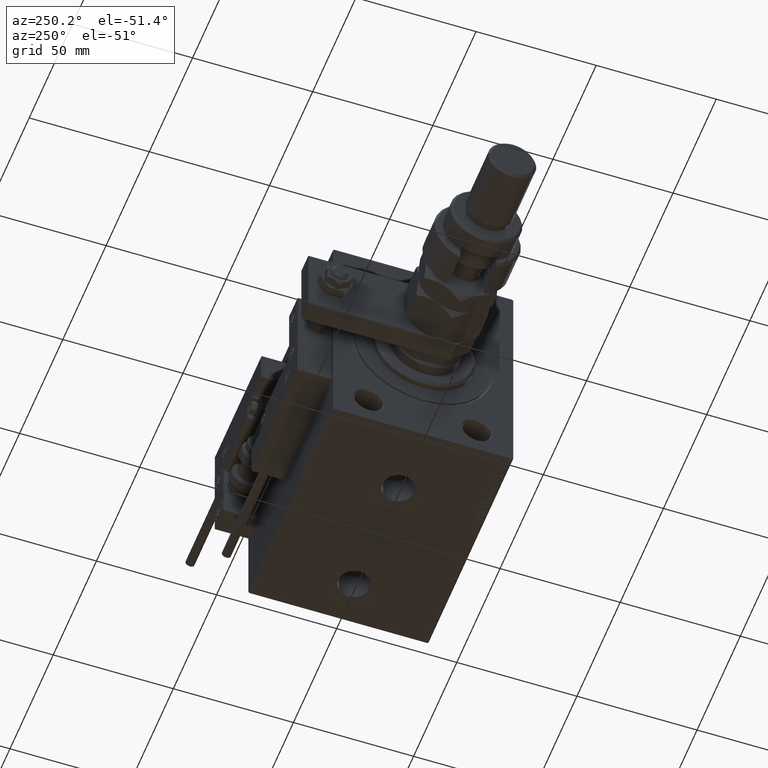
[diagram: clean part render]
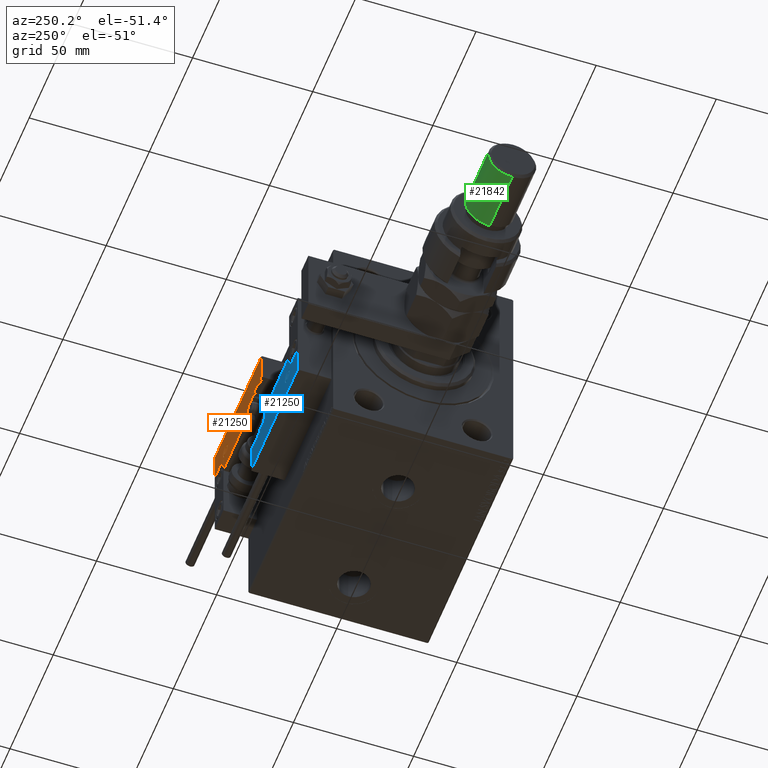
[diagram: same view with three faces highlighted in distinct colors, each labeled with its STEP entity id]
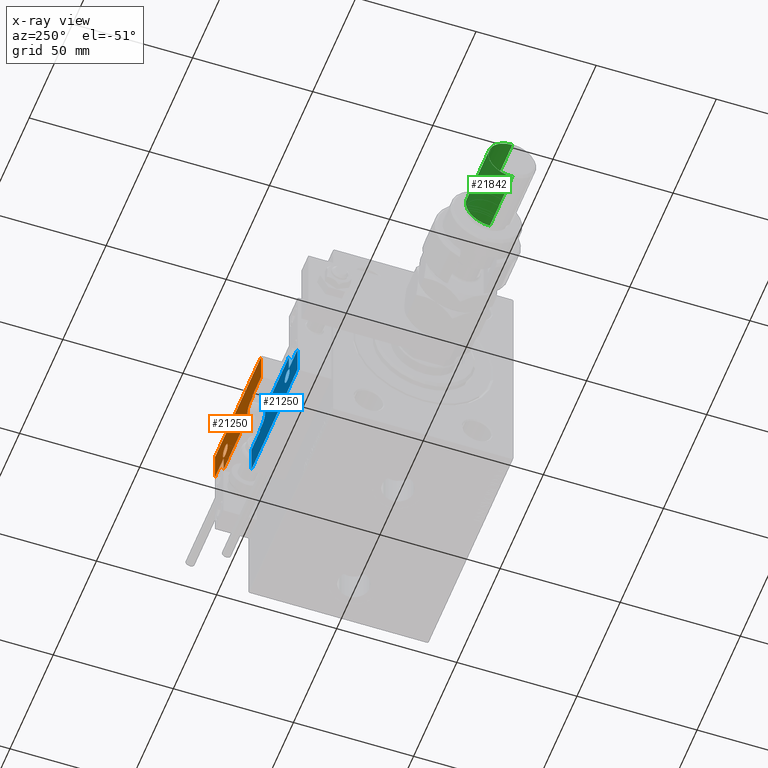
[diagram: x-ray of the same camera — body ghosted, the three highlighted faces saturated]
A machine part, auxiliary view with three faces highlighted in distinct colors.
The next image is the same camera in x-ray (body ghosted, the three faces saturated) — at least one of them is partly hidden behind the body in this view.
Their STEP definitions:

[orange] entity #21250 — the highlighted planar face has unit normal (-0, 1, -0).
#410 = DIRECTION ( 'NONE',  ( 1.000000000000000000, -1.734723475976815230E-16, 0.000000000000000000 ) ) ;
#650 = DIRECTION ( 'NONE',  ( -8.006416042969869188E-16, -1.000000000000000000, 0.000000000000000000 ) ) ;
#1606 = AXIS2_PLACEMENT_3D ( 'NONE', #45020, #9672, #27329 ) ;
#2082 = VERTEX_POINT ( 'NONE', #18731 ) ;
#2425 = CARTESIAN_POINT ( 'NONE',  ( 10.69999999999999929, 3.000000000000003109, 14.00000000000000000 ) ) ;
#4798 = CARTESIAN_POINT ( 'NONE',  ( -26.69999999999993534, 19.70000000000002061, 14.00000000000000000 ) ) ;
#4855 = LINE ( 'NONE', #9650, #11124 ) ;
#5715 = PLANE ( 'NONE',  #1606 ) ;
#5845 = ORIENTED_EDGE ( 'NONE', *, *, #21482, .T. ) ;
#6931 = CARTESIAN_POINT ( 'NONE',  ( 11.00000000000000000, 0.3000000000000032085, 14.00000000000000000 ) ) ;
#7833 = EDGE_CURVE ( 'NONE', #55011, #50033, #26264, .T. ) ;
#8568 = DIRECTION ( 'NONE',  ( 1.000000000000000000, 0.000000000000000000, 0.000000000000000000 ) ) ;
#8580 = CARTESIAN_POINT ( 'NONE',  ( 10.69999999999999929, 3.000000000000003109, 14.00000000000000000 ) ) ;
#8702 = ORIENTED_EDGE ( 'NONE', *, *, #24537, .T. ) ;
#9247 = EDGE_LOOP ( 'NONE', ( #27920, #55128, #53411, #35610, #45185, #5845, #8702, #24912, #42654, #35401, #50799 ) ) ;
#9250 = AXIS2_PLACEMENT_3D ( 'NONE', #46107, #34016, #46382 ) ;
#9347 = DIRECTION ( 'NONE',  ( 1.000000000000000000, -1.734723475976796001E-16, 0.000000000000000000 ) ) ;
#9650 = CARTESIAN_POINT ( 'NONE',  ( -26.69999999999994600, 7.000000000000005329, 14.00000000000000000 ) ) ;
#9672 = DIRECTION ( 'NONE',  ( -0.000000000000000000, 0.000000000000000000, 1.000000000000000000 ) ) ;
#9895 = CARTESIAN_POINT ( 'NONE',  ( -26.99999999999993605, 19.70000000000002061, 14.00000000000000000 ) ) ;
#10040 = VECTOR ( 'NONE', #410, 1000.000000000000000 ) ;
#10226 = FACE_OUTER_BOUND ( 'NONE', #9247, .T. ) ;
#11124 = VECTOR ( 'NONE', #650, 1000.000000000000000 ) ;
#11618 = CARTESIAN_POINT ( 'NONE',  ( 16.69999999999999929, 7.000000000000009770, 14.00000000000000000 ) ) ;
#12307 = CARTESIAN_POINT ( 'NONE',  ( 26.70000000000006324, 7.300000000000007816, 14.00000000000000000 ) ) ;
#12449 = DIRECTION ( 'NONE',  ( 0.000000000000000000, -0.000000000000000000, -1.000000000000000000 ) ) ;
#12494 = CARTESIAN_POINT ( 'NONE',  ( 26.70000000000006324, 20.00000000000001776, 14.00000000000000000 ) ) ;
#12560 = EDGE_CURVE ( 'NONE', #2082, #47040, #40350, .T. ) ;
#12721 = CARTESIAN_POINT ( 'NONE',  ( 13.99999999999999822, 3.000000000000002665, 14.00000000000000000 ) ) ;
#12787 = CARTESIAN_POINT ( 'NONE',  ( -14.79999999999994920, 9.800000000000004263, 14.00000000000000000 ) ) ;
#13307 = EDGE_CURVE ( 'NONE', #50033, #55011, #24629, .T. ) ;
#13336 = VECTOR ( 'NONE', #34869, 1000.000000000000000 ) ;
#14614 = CARTESIAN_POINT ( 'NONE',  ( -17.59999999999994813, 9.800000000000004263, 14.00000000000000000 ) ) ;
#16713 = VECTOR ( 'NONE', #46992, 1000.000000000000000 ) ;
#16923 = DIRECTION ( 'NONE',  ( 1.000000000000000000, 0.000000000000000000, 0.000000000000000000 ) ) ;
#17270 = CARTESIAN_POINT ( 'NONE',  ( -16.99999999999999289, 7.300000000000003375, 14.00000000000000000 ) ) ;
#17400 = VECTOR ( 'NONE', #21446, 1000.000000000000000 ) ;
#17850 = VERTEX_POINT ( 'NONE', #28763 ) ;
#17940 = EDGE_CURVE ( 'NONE', #48478, #17850, #34083, .T. ) ;
#18573 = CARTESIAN_POINT ( 'NONE',  ( -16.69999999999999218, 3.252606517456513302E-15, 14.00000000000000000 ) ) ;
#18726 = DIRECTION ( 'NONE',  ( -0.000000000000000000, 1.000000000000000000, -0.000000000000000000 ) ) ;
#18731 = CARTESIAN_POINT ( 'NONE',  ( -16.69999999999999218, 0.3000000000000032085, 14.00000000000000000 ) ) ;
#19777 = VERTEX_POINT ( 'NONE', #4798 ) ;
#20004 = CARTESIAN_POINT ( 'NONE',  ( -16.69999999999999218, 7.300000000000003375, 14.00000000000000000 ) ) ;
#20894 = LINE ( 'NONE', #42789, #17400 ) ;
#21157 = CARTESIAN_POINT ( 'NONE',  ( 27.00000000000006395, 7.300000000000007816, 14.00000000000000000 ) ) ;
#21250 = ADVANCED_FACE ( 'NONE', ( #40529, #10226 ), #5715, .T. ) ;
#21446 = DIRECTION ( 'NONE',  ( 1.000000000000000000, 5.782411586589357639E-16, -0.000000000000000000 ) ) ;
#21482 = EDGE_CURVE ( 'NONE', #24814, #43009, #41361, .T. ) ;
#21515 = EDGE_CURVE ( 'NONE', #28653, #31727, #23135, .T. ) ;
#22402 = EDGE_CURVE ( 'NONE', #17850, #19777, #52267, .T. ) ;
#22478 = EDGE_CURVE ( 'NONE', #33975, #2082, #39917, .T. ) ;
#22511 = VERTEX_POINT ( 'NONE', #27546 ) ;
#23135 = CIRCLE ( 'NONE', #32999, 3.299999999999997158 ) ;
#23986 = EDGE_CURVE ( 'NONE', #47040, #28653, #28258, .T. ) ;
#24537 = EDGE_CURVE ( 'NONE', #43009, #48478, #38563, .T. ) ;
#24629 = CIRCLE ( 'NONE', #52532, 2.800000000000000266 ) ;
#24814 = VERTEX_POINT ( 'NONE', #50248 ) ;
#24912 = ORIENTED_EDGE ( 'NONE', *, *, #17940, .T. ) ;
#26264 = CIRCLE ( 'NONE', #9250, 2.800000000000000266 ) ;
#27329 = DIRECTION ( 'NONE',  ( 1.000000000000000000, 0.000000000000000000, 0.000000000000000000 ) ) ;
#27546 = CARTESIAN_POINT ( 'NONE',  ( -26.69999999999994600, 7.300000000000005151, 14.00000000000000000 ) ) ;
#27920 = ORIENTED_EDGE ( 'NONE', *, *, #22478, .T. ) ;
#28258 = LINE ( 'NONE', #2425, #35956 ) ;
#28653 = VERTEX_POINT ( 'NONE', #8580 ) ;
#28702 = EDGE_CURVE ( 'NONE', #22511, #33975, #30177, .T. ) ;
#28763 = CARTESIAN_POINT ( 'NONE',  ( 26.70000000000006324, 19.70000000000001705, 14.00000000000000000 ) ) ;
#29888 = DIRECTION ( 'NONE',  ( 0.000000000000000000, -0.000000000000000000, -1.000000000000000000 ) ) ;
#30177 = LINE ( 'NONE', #17270, #10040 ) ;
#31421 = ORIENTED_EDGE ( 'NONE', *, *, #13307, .T. ) ;
#31727 = VERTEX_POINT ( 'NONE', #33363 ) ;
#32999 = AXIS2_PLACEMENT_3D ( 'NONE', #12721, #12449, #16923 ) ;
#33363 = CARTESIAN_POINT ( 'NONE',  ( 13.99999999999999822, 6.300000000000001599, 14.00000000000000000 ) ) ;
#33832 = EDGE_CURVE ( 'NONE', #31727, #24814, #20894, .T. ) ;
#33879 = EDGE_CURVE ( 'NONE', #19777, #22511, #4855, .T. ) ;
#33975 = VERTEX_POINT ( 'NONE', #20004 ) ;
#34016 = DIRECTION ( 'NONE',  ( 0.000000000000000000, -0.000000000000000000, -1.000000000000000000 ) ) ;
#34083 = LINE ( 'NONE', #12494, #16713 ) ;
#34869 = DIRECTION ( 'NONE',  ( -1.000000000000000000, 6.424901762877063495E-17, -0.000000000000000000 ) ) ;
#35401 = ORIENTED_EDGE ( 'NONE', *, *, #33879, .T. ) ;
#35610 = ORIENTED_EDGE ( 'NONE', *, *, #21515, .T. ) ;
#35956 = VECTOR ( 'NONE', #18726, 1000.000000000000000 ) ;
#37055 = VECTOR ( 'NONE', #9347, 1000.000000000000000 ) ;
#38563 = LINE ( 'NONE', #21157, #37055 ) ;
#39917 = LINE ( 'NONE', #18573, #51870 ) ;
#40350 = LINE ( 'NONE', #6931, #49812 ) ;
#40529 = FACE_BOUND ( 'NONE', #49751, .T. ) ;
#41361 = LINE ( 'NONE', #11618, #52724 ) ;
#42654 = ORIENTED_EDGE ( 'NONE', *, *, #22402, .T. ) ;
#42789 = CARTESIAN_POINT ( 'NONE',  ( 17.00000000000000000, 6.300000000000003375, 14.00000000000000000 ) ) ;
#43009 = VERTEX_POINT ( 'NONE', #54954 ) ;
#43568 = DIRECTION ( 'NONE',  ( 0.000000000000000000, -1.000000000000000000, 0.000000000000000000 ) ) ;
#45020 = CARTESIAN_POINT ( 'NONE',  ( 0.000000000000000000, 0.000000000000000000, 14.00000000000000000 ) ) ;
#45185 = ORIENTED_EDGE ( 'NONE', *, *, #33832, .T. ) ;
#45478 = ORIENTED_EDGE ( 'NONE', *, *, #7833, .T. ) ;
#46107 = CARTESIAN_POINT ( 'NONE',  ( -14.79999999999994920, 9.800000000000004263, 14.00000000000000000 ) ) ;
#46382 = DIRECTION ( 'NONE',  ( 1.000000000000000000, 0.000000000000000000, 0.000000000000000000 ) ) ;
#46992 = DIRECTION ( 'NONE',  ( 0.000000000000000000, 1.000000000000000000, -0.000000000000000000 ) ) ;
#47040 = VERTEX_POINT ( 'NONE', #48430 ) ;
#47990 = CARTESIAN_POINT ( 'NONE',  ( -11.99999999999994849, 9.800000000000004263, 14.00000000000000000 ) ) ;
#48430 = CARTESIAN_POINT ( 'NONE',  ( 10.69999999999999929, 0.3000000000000032085, 14.00000000000000000 ) ) ;
#48478 = VERTEX_POINT ( 'NONE', #12307 ) ;
#49335 = DIRECTION ( 'NONE',  ( 1.000000000000000000, -0.000000000000000000, 0.000000000000000000 ) ) ;
#49751 = EDGE_LOOP ( 'NONE', ( #31421, #45478 ) ) ;
#49812 = VECTOR ( 'NONE', #49335, 1000.000000000000000 ) ;
#50033 = VERTEX_POINT ( 'NONE', #47990 ) ;
#50248 = CARTESIAN_POINT ( 'NONE',  ( 16.69999999999999929, 6.300000000000003375, 14.00000000000000000 ) ) ;
#50799 = ORIENTED_EDGE ( 'NONE', *, *, #28702, .T. ) ;
#51870 = VECTOR ( 'NONE', #43568, 1000.000000000000000 ) ;
#52267 = LINE ( 'NONE', #9895, #13336 ) ;
#52532 = AXIS2_PLACEMENT_3D ( 'NONE', #12787, #29888, #8568 ) ;
#52724 = VECTOR ( 'NONE', #54832, 1000.000000000000000 ) ;
#53411 = ORIENTED_EDGE ( 'NONE', *, *, #23986, .T. ) ;
#54832 = DIRECTION ( 'NONE',  ( 9.912705577010318647E-16, 1.000000000000000000, 0.000000000000000000 ) ) ;
#54954 = CARTESIAN_POINT ( 'NONE',  ( 16.69999999999999929, 7.300000000000009592, 14.00000000000000000 ) ) ;
#55011 = VERTEX_POINT ( 'NONE', #14614 ) ;
#55128 = ORIENTED_EDGE ( 'NONE', *, *, #12560, .T. ) ;

[blue] entity #21250 — the highlighted planar face has unit normal (-0, 1, -0).
#410 = DIRECTION ( 'NONE',  ( 1.000000000000000000, -1.734723475976815230E-16, 0.000000000000000000 ) ) ;
#650 = DIRECTION ( 'NONE',  ( -8.006416042969869188E-16, -1.000000000000000000, 0.000000000000000000 ) ) ;
#1606 = AXIS2_PLACEMENT_3D ( 'NONE', #45020, #9672, #27329 ) ;
#2082 = VERTEX_POINT ( 'NONE', #18731 ) ;
#2425 = CARTESIAN_POINT ( 'NONE',  ( 10.69999999999999929, 3.000000000000003109, 14.00000000000000000 ) ) ;
#4798 = CARTESIAN_POINT ( 'NONE',  ( -26.69999999999993534, 19.70000000000002061, 14.00000000000000000 ) ) ;
#4855 = LINE ( 'NONE', #9650, #11124 ) ;
#5715 = PLANE ( 'NONE',  #1606 ) ;
#5845 = ORIENTED_EDGE ( 'NONE', *, *, #21482, .T. ) ;
#6931 = CARTESIAN_POINT ( 'NONE',  ( 11.00000000000000000, 0.3000000000000032085, 14.00000000000000000 ) ) ;
#7833 = EDGE_CURVE ( 'NONE', #55011, #50033, #26264, .T. ) ;
#8568 = DIRECTION ( 'NONE',  ( 1.000000000000000000, 0.000000000000000000, 0.000000000000000000 ) ) ;
#8580 = CARTESIAN_POINT ( 'NONE',  ( 10.69999999999999929, 3.000000000000003109, 14.00000000000000000 ) ) ;
#8702 = ORIENTED_EDGE ( 'NONE', *, *, #24537, .T. ) ;
#9247 = EDGE_LOOP ( 'NONE', ( #27920, #55128, #53411, #35610, #45185, #5845, #8702, #24912, #42654, #35401, #50799 ) ) ;
#9250 = AXIS2_PLACEMENT_3D ( 'NONE', #46107, #34016, #46382 ) ;
#9347 = DIRECTION ( 'NONE',  ( 1.000000000000000000, -1.734723475976796001E-16, 0.000000000000000000 ) ) ;
#9650 = CARTESIAN_POINT ( 'NONE',  ( -26.69999999999994600, 7.000000000000005329, 14.00000000000000000 ) ) ;
#9672 = DIRECTION ( 'NONE',  ( -0.000000000000000000, 0.000000000000000000, 1.000000000000000000 ) ) ;
#9895 = CARTESIAN_POINT ( 'NONE',  ( -26.99999999999993605, 19.70000000000002061, 14.00000000000000000 ) ) ;
#10040 = VECTOR ( 'NONE', #410, 1000.000000000000000 ) ;
#10226 = FACE_OUTER_BOUND ( 'NONE', #9247, .T. ) ;
#11124 = VECTOR ( 'NONE', #650, 1000.000000000000000 ) ;
#11618 = CARTESIAN_POINT ( 'NONE',  ( 16.69999999999999929, 7.000000000000009770, 14.00000000000000000 ) ) ;
#12307 = CARTESIAN_POINT ( 'NONE',  ( 26.70000000000006324, 7.300000000000007816, 14.00000000000000000 ) ) ;
#12449 = DIRECTION ( 'NONE',  ( 0.000000000000000000, -0.000000000000000000, -1.000000000000000000 ) ) ;
#12494 = CARTESIAN_POINT ( 'NONE',  ( 26.70000000000006324, 20.00000000000001776, 14.00000000000000000 ) ) ;
#12560 = EDGE_CURVE ( 'NONE', #2082, #47040, #40350, .T. ) ;
#12721 = CARTESIAN_POINT ( 'NONE',  ( 13.99999999999999822, 3.000000000000002665, 14.00000000000000000 ) ) ;
#12787 = CARTESIAN_POINT ( 'NONE',  ( -14.79999999999994920, 9.800000000000004263, 14.00000000000000000 ) ) ;
#13307 = EDGE_CURVE ( 'NONE', #50033, #55011, #24629, .T. ) ;
#13336 = VECTOR ( 'NONE', #34869, 1000.000000000000000 ) ;
#14614 = CARTESIAN_POINT ( 'NONE',  ( -17.59999999999994813, 9.800000000000004263, 14.00000000000000000 ) ) ;
#16713 = VECTOR ( 'NONE', #46992, 1000.000000000000000 ) ;
#16923 = DIRECTION ( 'NONE',  ( 1.000000000000000000, 0.000000000000000000, 0.000000000000000000 ) ) ;
#17270 = CARTESIAN_POINT ( 'NONE',  ( -16.99999999999999289, 7.300000000000003375, 14.00000000000000000 ) ) ;
#17400 = VECTOR ( 'NONE', #21446, 1000.000000000000000 ) ;
#17850 = VERTEX_POINT ( 'NONE', #28763 ) ;
#17940 = EDGE_CURVE ( 'NONE', #48478, #17850, #34083, .T. ) ;
#18573 = CARTESIAN_POINT ( 'NONE',  ( -16.69999999999999218, 3.252606517456513302E-15, 14.00000000000000000 ) ) ;
#18726 = DIRECTION ( 'NONE',  ( -0.000000000000000000, 1.000000000000000000, -0.000000000000000000 ) ) ;
#18731 = CARTESIAN_POINT ( 'NONE',  ( -16.69999999999999218, 0.3000000000000032085, 14.00000000000000000 ) ) ;
#19777 = VERTEX_POINT ( 'NONE', #4798 ) ;
#20004 = CARTESIAN_POINT ( 'NONE',  ( -16.69999999999999218, 7.300000000000003375, 14.00000000000000000 ) ) ;
#20894 = LINE ( 'NONE', #42789, #17400 ) ;
#21157 = CARTESIAN_POINT ( 'NONE',  ( 27.00000000000006395, 7.300000000000007816, 14.00000000000000000 ) ) ;
#21250 = ADVANCED_FACE ( 'NONE', ( #40529, #10226 ), #5715, .T. ) ;
#21446 = DIRECTION ( 'NONE',  ( 1.000000000000000000, 5.782411586589357639E-16, -0.000000000000000000 ) ) ;
#21482 = EDGE_CURVE ( 'NONE', #24814, #43009, #41361, .T. ) ;
#21515 = EDGE_CURVE ( 'NONE', #28653, #31727, #23135, .T. ) ;
#22402 = EDGE_CURVE ( 'NONE', #17850, #19777, #52267, .T. ) ;
#22478 = EDGE_CURVE ( 'NONE', #33975, #2082, #39917, .T. ) ;
#22511 = VERTEX_POINT ( 'NONE', #27546 ) ;
#23135 = CIRCLE ( 'NONE', #32999, 3.299999999999997158 ) ;
#23986 = EDGE_CURVE ( 'NONE', #47040, #28653, #28258, .T. ) ;
#24537 = EDGE_CURVE ( 'NONE', #43009, #48478, #38563, .T. ) ;
#24629 = CIRCLE ( 'NONE', #52532, 2.800000000000000266 ) ;
#24814 = VERTEX_POINT ( 'NONE', #50248 ) ;
#24912 = ORIENTED_EDGE ( 'NONE', *, *, #17940, .T. ) ;
#26264 = CIRCLE ( 'NONE', #9250, 2.800000000000000266 ) ;
#27329 = DIRECTION ( 'NONE',  ( 1.000000000000000000, 0.000000000000000000, 0.000000000000000000 ) ) ;
#27546 = CARTESIAN_POINT ( 'NONE',  ( -26.69999999999994600, 7.300000000000005151, 14.00000000000000000 ) ) ;
#27920 = ORIENTED_EDGE ( 'NONE', *, *, #22478, .T. ) ;
#28258 = LINE ( 'NONE', #2425, #35956 ) ;
#28653 = VERTEX_POINT ( 'NONE', #8580 ) ;
#28702 = EDGE_CURVE ( 'NONE', #22511, #33975, #30177, .T. ) ;
#28763 = CARTESIAN_POINT ( 'NONE',  ( 26.70000000000006324, 19.70000000000001705, 14.00000000000000000 ) ) ;
#29888 = DIRECTION ( 'NONE',  ( 0.000000000000000000, -0.000000000000000000, -1.000000000000000000 ) ) ;
#30177 = LINE ( 'NONE', #17270, #10040 ) ;
#31421 = ORIENTED_EDGE ( 'NONE', *, *, #13307, .T. ) ;
#31727 = VERTEX_POINT ( 'NONE', #33363 ) ;
#32999 = AXIS2_PLACEMENT_3D ( 'NONE', #12721, #12449, #16923 ) ;
#33363 = CARTESIAN_POINT ( 'NONE',  ( 13.99999999999999822, 6.300000000000001599, 14.00000000000000000 ) ) ;
#33832 = EDGE_CURVE ( 'NONE', #31727, #24814, #20894, .T. ) ;
#33879 = EDGE_CURVE ( 'NONE', #19777, #22511, #4855, .T. ) ;
#33975 = VERTEX_POINT ( 'NONE', #20004 ) ;
#34016 = DIRECTION ( 'NONE',  ( 0.000000000000000000, -0.000000000000000000, -1.000000000000000000 ) ) ;
#34083 = LINE ( 'NONE', #12494, #16713 ) ;
#34869 = DIRECTION ( 'NONE',  ( -1.000000000000000000, 6.424901762877063495E-17, -0.000000000000000000 ) ) ;
#35401 = ORIENTED_EDGE ( 'NONE', *, *, #33879, .T. ) ;
#35610 = ORIENTED_EDGE ( 'NONE', *, *, #21515, .T. ) ;
#35956 = VECTOR ( 'NONE', #18726, 1000.000000000000000 ) ;
#37055 = VECTOR ( 'NONE', #9347, 1000.000000000000000 ) ;
#38563 = LINE ( 'NONE', #21157, #37055 ) ;
#39917 = LINE ( 'NONE', #18573, #51870 ) ;
#40350 = LINE ( 'NONE', #6931, #49812 ) ;
#40529 = FACE_BOUND ( 'NONE', #49751, .T. ) ;
#41361 = LINE ( 'NONE', #11618, #52724 ) ;
#42654 = ORIENTED_EDGE ( 'NONE', *, *, #22402, .T. ) ;
#42789 = CARTESIAN_POINT ( 'NONE',  ( 17.00000000000000000, 6.300000000000003375, 14.00000000000000000 ) ) ;
#43009 = VERTEX_POINT ( 'NONE', #54954 ) ;
#43568 = DIRECTION ( 'NONE',  ( 0.000000000000000000, -1.000000000000000000, 0.000000000000000000 ) ) ;
#45020 = CARTESIAN_POINT ( 'NONE',  ( 0.000000000000000000, 0.000000000000000000, 14.00000000000000000 ) ) ;
#45185 = ORIENTED_EDGE ( 'NONE', *, *, #33832, .T. ) ;
#45478 = ORIENTED_EDGE ( 'NONE', *, *, #7833, .T. ) ;
#46107 = CARTESIAN_POINT ( 'NONE',  ( -14.79999999999994920, 9.800000000000004263, 14.00000000000000000 ) ) ;
#46382 = DIRECTION ( 'NONE',  ( 1.000000000000000000, 0.000000000000000000, 0.000000000000000000 ) ) ;
#46992 = DIRECTION ( 'NONE',  ( 0.000000000000000000, 1.000000000000000000, -0.000000000000000000 ) ) ;
#47040 = VERTEX_POINT ( 'NONE', #48430 ) ;
#47990 = CARTESIAN_POINT ( 'NONE',  ( -11.99999999999994849, 9.800000000000004263, 14.00000000000000000 ) ) ;
#48430 = CARTESIAN_POINT ( 'NONE',  ( 10.69999999999999929, 0.3000000000000032085, 14.00000000000000000 ) ) ;
#48478 = VERTEX_POINT ( 'NONE', #12307 ) ;
#49335 = DIRECTION ( 'NONE',  ( 1.000000000000000000, -0.000000000000000000, 0.000000000000000000 ) ) ;
#49751 = EDGE_LOOP ( 'NONE', ( #31421, #45478 ) ) ;
#49812 = VECTOR ( 'NONE', #49335, 1000.000000000000000 ) ;
#50033 = VERTEX_POINT ( 'NONE', #47990 ) ;
#50248 = CARTESIAN_POINT ( 'NONE',  ( 16.69999999999999929, 6.300000000000003375, 14.00000000000000000 ) ) ;
#50799 = ORIENTED_EDGE ( 'NONE', *, *, #28702, .T. ) ;
#51870 = VECTOR ( 'NONE', #43568, 1000.000000000000000 ) ;
#52267 = LINE ( 'NONE', #9895, #13336 ) ;
#52532 = AXIS2_PLACEMENT_3D ( 'NONE', #12787, #29888, #8568 ) ;
#52724 = VECTOR ( 'NONE', #54832, 1000.000000000000000 ) ;
#53411 = ORIENTED_EDGE ( 'NONE', *, *, #23986, .T. ) ;
#54832 = DIRECTION ( 'NONE',  ( 9.912705577010318647E-16, 1.000000000000000000, 0.000000000000000000 ) ) ;
#54954 = CARTESIAN_POINT ( 'NONE',  ( 16.69999999999999929, 7.300000000000009592, 14.00000000000000000 ) ) ;
#55011 = VERTEX_POINT ( 'NONE', #14614 ) ;
#55128 = ORIENTED_EDGE ( 'NONE', *, *, #12560, .T. ) ;

[green] entity #21842 — the highlighted cylindrical surface (edge-blend (fillet) strip) has radius 10 mm, axis along (1, 0, -0).
#1753 = CARTESIAN_POINT ( 'NONE',  ( 10.00000000000000000, 1.224646799147353256E-15, 29.00000000000000711 ) ) ;
#1812 = DIRECTION ( 'NONE',  ( 1.000000000000000000, 0.000000000000000000, 0.000000000000000000 ) ) ;
#3702 = DIRECTION ( 'NONE',  ( -0.000000000000000000, -0.000000000000000000, -1.000000000000000000 ) ) ;
#6034 = VECTOR ( 'NONE', #26393, 1000.000000000000000 ) ;
#6249 = VERTEX_POINT ( 'NONE', #31314 ) ;
#7795 = EDGE_CURVE ( 'NONE', #35591, #9246, #34291, .T. ) ;
#8224 = ORIENTED_EDGE ( 'NONE', *, *, #54977, .T. ) ;
#9246 = VERTEX_POINT ( 'NONE', #47073 ) ;
#10133 = CARTESIAN_POINT ( 'NONE',  ( 10.00000000000000000, 1.224646799147353256E-15, 56.00000000000000711 ) ) ;
#10328 = DIRECTION ( 'NONE',  ( 1.000000000000000000, 0.000000000000000000, 0.000000000000000000 ) ) ;
#11271 = CYLINDRICAL_SURFACE ( 'NONE', #34842, 10.00000000000000000 ) ;
#12465 = EDGE_CURVE ( 'NONE', #35591, #6249, #21113, .T. ) ;
#18469 = CIRCLE ( 'NONE', #49862, 10.00000000000000000 ) ;
#18819 = LINE ( 'NONE', #10133, #6034 ) ;
#20912 = VECTOR ( 'NONE', #3702, 1000.000000000000000 ) ;
#21113 = CIRCLE ( 'NONE', #55217, 10.00000000000000000 ) ;
#21839 = CARTESIAN_POINT ( 'NONE',  ( 0.000000000000000000, 0.000000000000000000, 54.99999999999998579 ) ) ;
#21842 = ADVANCED_FACE ( 'NONE', ( #32586 ), #11271, .T. ) ;
#23154 = CARTESIAN_POINT ( 'NONE',  ( 0.000000000000000000, 0.000000000000000000, 29.00000000000000711 ) ) ;
#24227 = ORIENTED_EDGE ( 'NONE', *, *, #41571, .T. ) ;
#25311 = CARTESIAN_POINT ( 'NONE',  ( -10.00000000000000000, 0.000000000000000000, 56.00000000000000711 ) ) ;
#26393 = DIRECTION ( 'NONE',  ( -0.000000000000000000, -0.000000000000000000, -1.000000000000000000 ) ) ;
#31314 = CARTESIAN_POINT ( 'NONE',  ( 10.00000000000000000, 1.224646799147353256E-15, 54.99999999999998579 ) ) ;
#32586 = FACE_OUTER_BOUND ( 'NONE', #33818, .T. ) ;
#33818 = EDGE_LOOP ( 'NONE', ( #41088, #8224, #24227, #50658 ) ) ;
#33977 = DIRECTION ( 'NONE',  ( -0.000000000000000000, -0.000000000000000000, -1.000000000000000000 ) ) ;
#34252 = DIRECTION ( 'NONE',  ( -1.000000000000000000, 0.000000000000000000, 0.000000000000000000 ) ) ;
#34291 = LINE ( 'NONE', #25311, #20912 ) ;
#34842 = AXIS2_PLACEMENT_3D ( 'NONE', #51653, #33977, #34252 ) ;
#35591 = VERTEX_POINT ( 'NONE', #45768 ) ;
#39252 = VERTEX_POINT ( 'NONE', #1753 ) ;
#40840 = DIRECTION ( 'NONE',  ( -0.000000000000000000, -0.000000000000000000, 1.000000000000000000 ) ) ;
#41088 = ORIENTED_EDGE ( 'NONE', *, *, #12465, .T. ) ;
#41571 = EDGE_CURVE ( 'NONE', #39252, #9246, #18469, .T. ) ;
#45768 = CARTESIAN_POINT ( 'NONE',  ( -10.00000000000000000, 0.000000000000000000, 54.99999999999998579 ) ) ;
#47073 = CARTESIAN_POINT ( 'NONE',  ( -10.00000000000000000, 0.000000000000000000, 29.00000000000000711 ) ) ;
#48773 = DIRECTION ( 'NONE',  ( 0.000000000000000000, 0.000000000000000000, -1.000000000000000000 ) ) ;
#49862 = AXIS2_PLACEMENT_3D ( 'NONE', #23154, #40840, #1812 ) ;
#50658 = ORIENTED_EDGE ( 'NONE', *, *, #7795, .F. ) ;
#51653 = CARTESIAN_POINT ( 'NONE',  ( 0.000000000000000000, 0.000000000000000000, 56.00000000000000711 ) ) ;
#54977 = EDGE_CURVE ( 'NONE', #6249, #39252, #18819, .T. ) ;
#55217 = AXIS2_PLACEMENT_3D ( 'NONE', #21839, #48773, #10328 ) ;